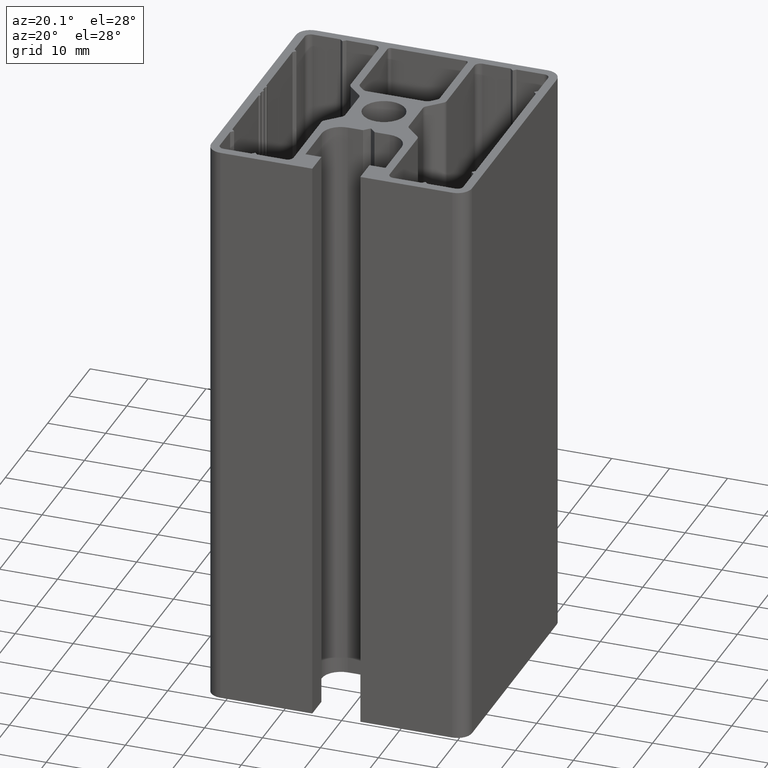
[diagram: clean part render]
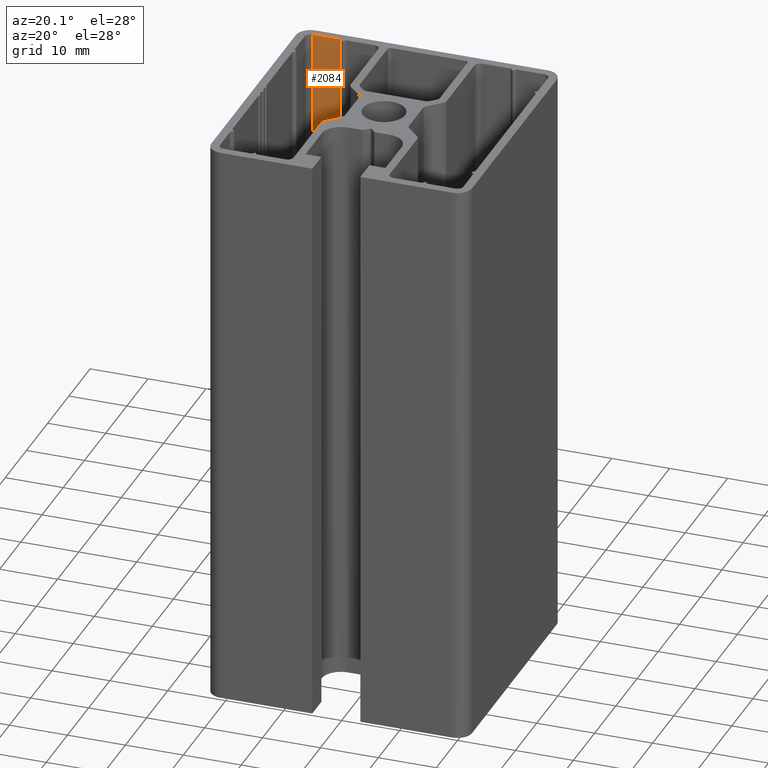
[diagram: same view with one face highlighted and labeled with its STEP entity id]
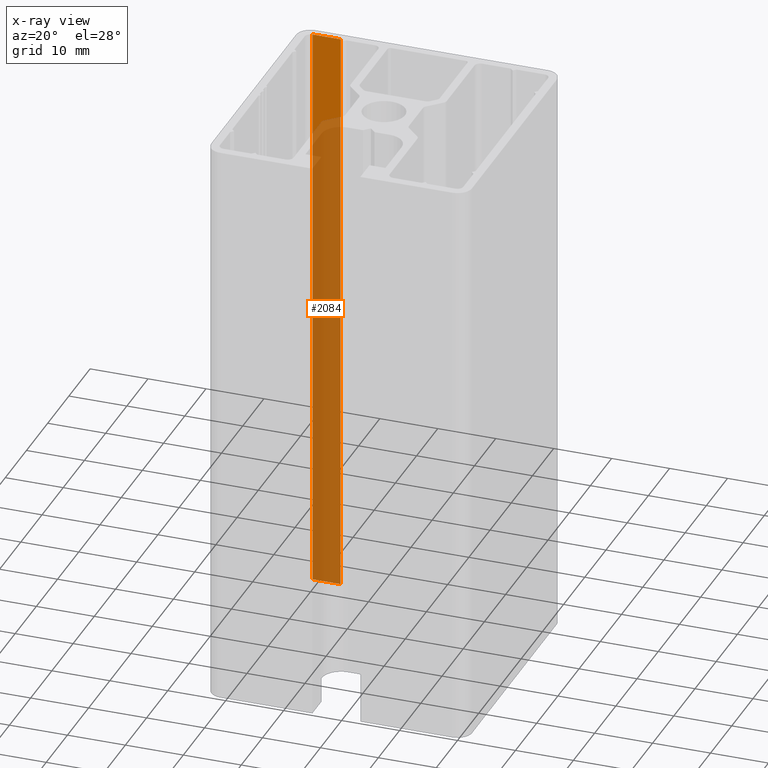
[diagram: x-ray of the same camera — body ghosted, the highlighted face saturated]
A machine part, auxiliary view. The second image highlights one B-rep face of the part: STEP entity #2084.
The next image is the same camera in x-ray: the body ghosted, the highlighted face saturated — about 84% of this face is hidden behind the body in this view.
In plain terms, the highlighted planar face has unit normal (0, 1, 0).
Its self-contained STEP definition (entity closure, byte-faithful):
#224=FACE_OUTER_BOUND('',#329,.T.);
#329=EDGE_LOOP('',(#1664,#1665,#1666,#1667));
#548=LINE('',#3395,#777);
#550=LINE('',#3399,#779);
#551=LINE('',#3401,#780);
#552=LINE('',#3402,#781);
#777=VECTOR('',#2779,100.);
#779=VECTOR('',#2783,4.80596948433026);
#780=VECTOR('',#2784,100.);
#781=VECTOR('',#2785,4.80596948433026);
#987=VERTEX_POINT('',#3392);
#988=VERTEX_POINT('',#3394);
#989=VERTEX_POINT('',#3398);
#990=VERTEX_POINT('',#3400);
#1274=EDGE_CURVE('',#988,#987,#548,.T.);
#1276=EDGE_CURVE('',#989,#987,#550,.T.);
#1277=EDGE_CURVE('',#990,#989,#551,.T.);
#1278=EDGE_CURVE('',#988,#990,#552,.T.);
#1664=ORIENTED_EDGE('',*,*,#1276,.F.);
#1665=ORIENTED_EDGE('',*,*,#1277,.F.);
#1666=ORIENTED_EDGE('',*,*,#1278,.F.);
#1667=ORIENTED_EDGE('',*,*,#1274,.T.);
#1986=PLANE('',#2254);
#2084=ADVANCED_FACE('',(#224),#1986,.F.);
#2254=AXIS2_PLACEMENT_3D('',#3397,#2781,#2782);
#2779=DIRECTION('',(0.,0.,1.));
#2781=DIRECTION('center_axis',(0.,1.,0.));
#2782=DIRECTION('ref_axis',(0.,0.,1.));
#2783=DIRECTION('',(1.,0.,0.));
#2784=DIRECTION('',(0.,0.,1.));
#2785=DIRECTION('',(-1.,0.,0.));
#3392=CARTESIAN_POINT('',(-15.1844374355334,20.9902637180057,100.));
#3394=CARTESIAN_POINT('',(-15.1844374355334,20.9902637180057,0.));
#3395=CARTESIAN_POINT('',(-15.1844374355334,20.9902637180057,0.));
#3397=CARTESIAN_POINT('Origin',(-19.9904069198636,20.9902637180057,0.));
#3398=CARTESIAN_POINT('',(-19.9904069198636,20.9902637180057,100.));
#3399=CARTESIAN_POINT('',(-9.99520345993182,20.9902637180057,100.));
#3400=CARTESIAN_POINT('',(-19.9904069198636,20.9902637180057,0.));
#3401=CARTESIAN_POINT('',(-19.9904069198636,20.9902637180057,0.));
#3402=CARTESIAN_POINT('',(-9.99520345993182,20.9902637180057,0.));